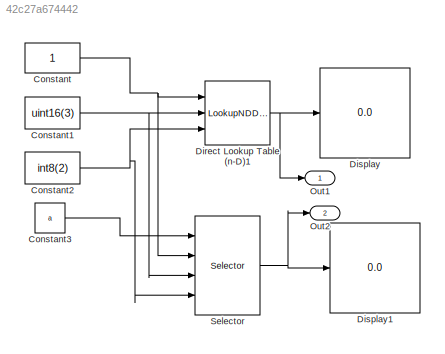
MODEL slx_42c27a674442
KIND model
CONFIG AbsTol = auto
CONFIG EnableMultiTasking = on
CONFIG FixedStep = 0.100000
CONFIG MaxStep = auto
CONFIG MinStep = auto
CONFIG PreLoadFcn = a = reshape(1:2800, [4 5 20 7]);
CONFIG RelTol = 1e-3
CONFIG SampleTimeConstraint = Unconstrained
CONFIG Solver = FixedStepDiscrete
CONFIG SolverName = FixedStepDiscrete
CONFIG StartTime = 0.0
CONFIG StopTime = 10.0
BLOCK [Constant] Constant
BLOCK [Constant] Constant1
  Value = uint16(3)
BLOCK [Constant] Constant2
  Value = int8(2)
BLOCK [Constant] Constant3
  Value = a
BLOCK [LookupNDDirect] Direct Lookup Table (n-D)1
  InputsSelectThisObjectFromTable = Column
  NumberOfTableDimensions = 4
  Ports = [3, 1]
  Table = a
BLOCK [Display] Display
  Decimation = 1
  Ports = [1]
BLOCK [Display] Display1
  Decimation = 1
  Ports = [1]
BLOCK [Outport] Out1
  IconDisplay = Port number
BLOCK [Outport] Out2
  IconDisplay = Port number
  Port = 2
BLOCK [Selector] Selector
  IndexMode = Zero-based
  IndexOptions = Select all,Index vector (port),Index vector (port),Index vector (port)
  Indices = [1 3],1,1,1
  InputPortWidth = 3
  NumberOfDimensions = 4
  OutputSizes = 1,1,1,1
  Ports = [4, 1]
NET Constant1:1 -> Direct Lookup Table (n-D)1:2, Selector:3
NET Constant2:1 -> Direct Lookup Table (n-D)1:3, Selector:4
LINE Constant3:1 -> Selector:1
NET Constant:1 -> Direct Lookup Table (n-D)1:1, Selector:2
NET Direct Lookup Table (n-D)1:1 -> Display:1, Out1:1
NET Selector:1 -> Display1:1, Out2:1
note: NET lines group one-source signal fan-out (src -> all destinations, sorted); 1:1 wires keep LINE
